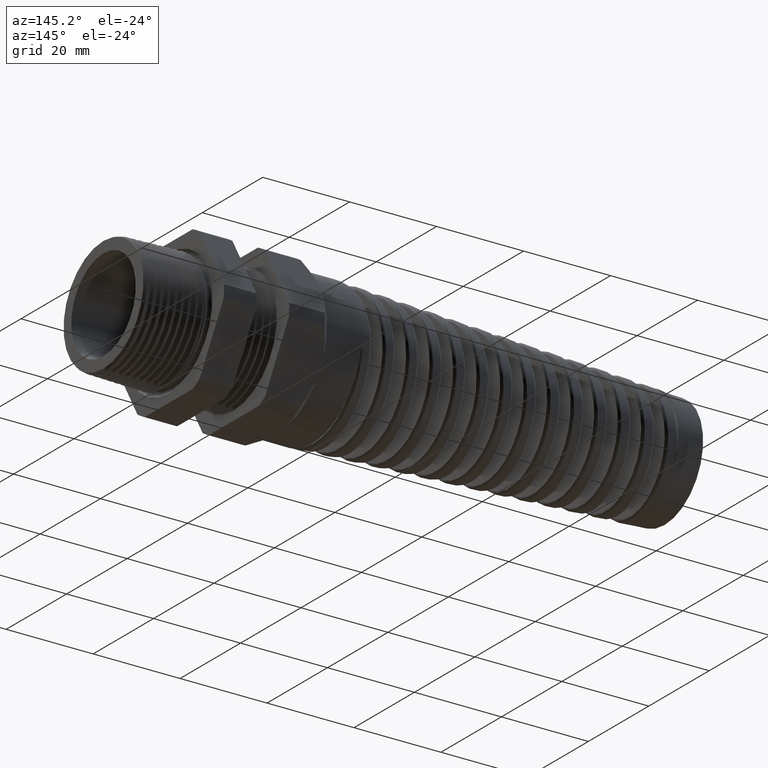
[diagram: clean part render]
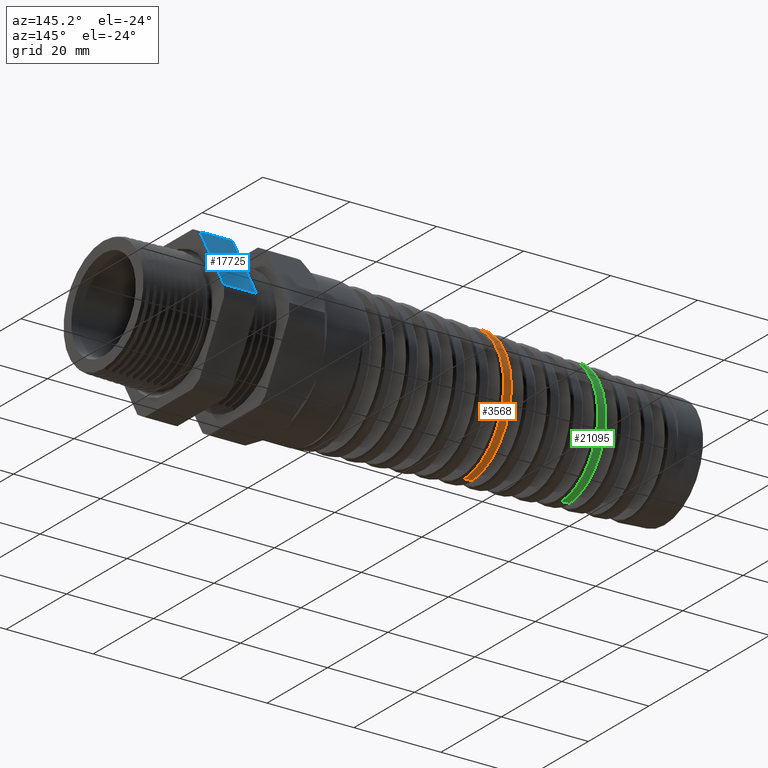
[diagram: same view with three faces highlighted in distinct colors, each labeled with its STEP entity id]
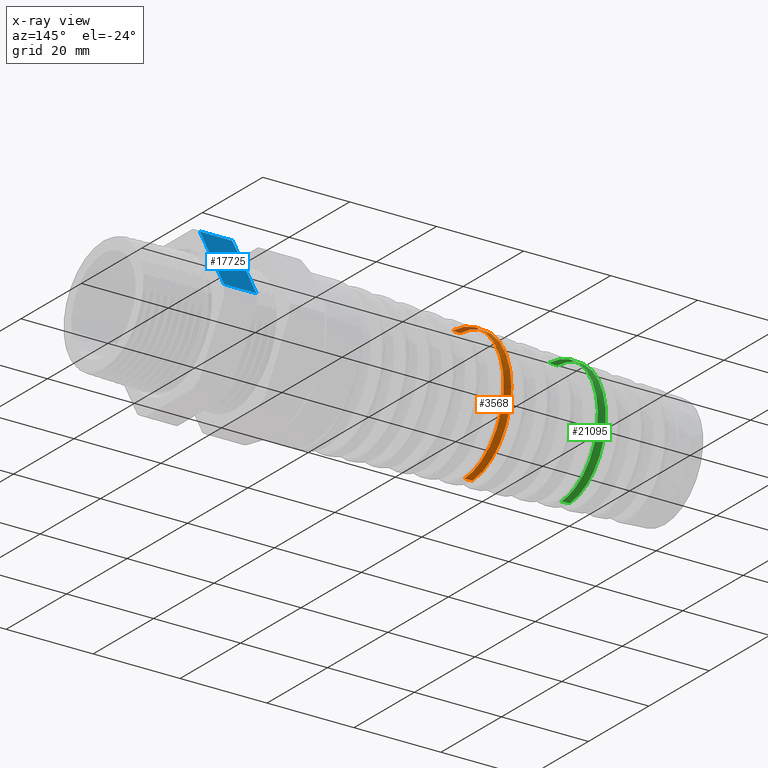
[diagram: x-ray of the same camera — body ghosted, the three highlighted faces saturated]
A machine part, auxiliary view with three faces highlighted in distinct colors.
The next image is the same camera in x-ray (body ghosted, the three faces saturated) — at least one of them is partly hidden behind the body in this view.
Their STEP definitions:

[orange] entity #3568 — the highlighted conical surface has half-angle 2.5 deg.
#615 = CARTESIAN_POINT ( 'NONE',  ( -3.060606324187646900, -2.606973477395661700E-015, -0.5831722846642353200 ) ) ;
#1424 = DIRECTION ( 'NONE',  ( 0.0000000000000000000, 0.0000000000000000000, -1.000000000000000000 ) ) ;
#1425 = DIRECTION ( 'NONE',  ( 1.000000000000000000, 0.0000000000000000000, 0.0000000000000000000 ) ) ;
#1427 = AXIS2_PLACEMENT_3D ( 'NONE', #1432, #1425, #1424 ) ;
#1428 = CONICAL_SURFACE ( 'NONE', #1427, 0.6500000000000000200, 0.04363323129985850100 ) ;
#1432 = CARTESIAN_POINT ( 'NONE',  ( -1.530000000000000000, 0.0000000000000000000, 0.0000000000000000000 ) ) ;
#1434 = FACE_OUTER_BOUND ( 'NONE', #3559, .T. ) ;
#1446 = CARTESIAN_POINT ( 'NONE',  ( -3.006524812227761700, 0.5856049661306287300, -0.01676049459491597800 ) ) ;
#1447 = CARTESIAN_POINT ( 'NONE',  ( -3.007668931847032700, 0.5846997809255973800, -0.03590487241490185300 ) ) ;
#1449 = CARTESIAN_POINT ( 'NONE',  ( -3.009977869589992600, 0.5809689190858302600, -0.07429719530195765000 ) ) ;
#1450 = CARTESIAN_POINT ( 'NONE',  ( -3.011135440082835000, 0.5781457387257786800, -0.09342217588728334000 ) ) ;
#1451 = CARTESIAN_POINT ( 'NONE',  ( -3.014582846091376400, 0.5669900134572331000, -0.1497513812757715900 ) ) ;
#1452 = CARTESIAN_POINT ( 'NONE',  ( -3.016868845466798500, 0.5559671316852700100, -0.1862589748798239300 ) ) ;
#1453 = CARTESIAN_POINT ( 'NONE',  ( -3.020326233298391100, 0.5340227137069996100, -0.2394404201720100900 ) ) ;
#1454 = CARTESIAN_POINT ( 'NONE',  ( -3.021487949721620000, 0.5257515162504836600, -0.2569848751115262900 ) ) ;
#1456 = CARTESIAN_POINT ( 'NONE',  ( -3.023794114102526600, 0.5076156313114592600, -0.2909716162914040600 ) ) ;
#1457 = CARTESIAN_POINT ( 'NONE',  ( -3.026086559556584000, 0.4878886471483313000, -0.3239077413581138400 ) ) ;
#1458 = CARTESIAN_POINT ( 'NONE',  ( -3.028379741246450600, 0.4650208387999917900, -0.3547679535479191800 ) ) ;
#1459 = CARTESIAN_POINT ( 'NONE',  ( -3.030686889901111700, 0.4405574287548397700, -0.3845725828436766800 ) ) ;
#1460 = CARTESIAN_POINT ( 'NONE',  ( -3.031845534000880100, 0.4275403949153066000, -0.3989139884606725000 ) ) ;
#1461 = CARTESIAN_POINT ( 'NONE',  ( -3.035293386819156900, 0.3868669970436665100, -0.4395251329139940900 ) ) ;
#1463 = CARTESIAN_POINT ( 'NONE',  ( -3.037577924824137000, 0.3573724338872424900, -0.4636991341016994900 ) ) ;
#1464 = CARTESIAN_POINT ( 'NONE',  ( -3.041041615840103700, 0.3095629728108257900, -0.4956054867014926800 ) ) ;
#1465 = CARTESIAN_POINT ( 'NONE',  ( -3.042208504390450300, 0.2929322894146247400, -0.5055580639225785200 ) ) ;
#1466 = CARTESIAN_POINT ( 'NONE',  ( -3.044526178347749300, 0.2589417677395514600, -0.5236690426489140100 ) ) ;
#1467 = CARTESIAN_POINT ( 'NONE',  ( -3.045674103889655100, 0.2416180716534440400, -0.5318229647430143800 ) ) ;
#1468 = CARTESIAN_POINT ( 'NONE',  ( -3.049106575610133400, 0.1886887709497737900, -0.5536507800802391600 ) ) ;
#1469 = CARTESIAN_POINT ( 'NONE',  ( -3.051380048614383600, 0.1521342110883908700, -0.5647161471227958300 ) ) ;
#1470 = CARTESIAN_POINT ( 'NONE',  ( -3.054850653878305300, 0.09533964302898269300, -0.5759042780880713200 ) ) ;
#1471 = CARTESIAN_POINT ( 'NONE',  ( -3.056008618702577900, 0.07622559757886356000, -0.5786881212002782400 ) ) ;
#1472 = CARTESIAN_POINT ( 'NONE',  ( -3.058309394199152800, 0.03812748765650364500, -0.5823395777213696800 ) ) ;
#1474 = CARTESIAN_POINT ( 'NONE',  ( -3.059456765066152200, 0.01906850153462931500, -0.5832224754994087500 ) ) ;
#1475 = CARTESIAN_POINT ( 'NONE',  ( -3.060606324187646900, -2.606973477395661700E-015, -0.5831722846642353200 ) ) ;
#1476 = B_SPLINE_CURVE_WITH_KNOTS ( 'NONE', 3,
 ( #1475, #1474, #1472, #1471, #1470, #1469, #1468, #1467, #1466, #1465, #1464, #1463, #1461, #1460, #1459, #1458, #1457, #1456, #1454, #1453, #1452, #1451, #1450, #1449, #1447, #1446, #1531, #1530, #1529, #1528, #1526, #1525, #1524, #1522, #1521, #1520, #1519, #1518, #1517, #1516, #1515, #1514, #1513, #1512, #1511, #1510, #1509, #1508, #1507, #1506 ),
 .UNSPECIFIED., .F., .F.,
 ( 4, 2, 2, 2, 2, 2, 2, 2, 1, 2, 2, 2, 2, 2, 2, 2, 1, 2, 2, 2, 2, 2, 2, 2, 2, 4 ),
 ( 0.6062766747045701400, 0.6077540708148723200, 0.6092314669251746000, 0.6121862591457789500, 0.6136636552560812400, 0.6151410513663834200, 0.6180958435869878800, 0.6195732396972900600, 0.6210506358075923400, 0.6225280319178945200, 0.6240054280281968100, 0.6269602202488011600, 0.6284376163591034500, 0.6299150124694056200, 0.6328698046900100800, 0.6343472008003122600, 0.6358245969106145500, 0.6373019930209167200, 0.6387793891312190100, 0.6417341813518234700, 0.6432115774621256500, 0.6446889735724278300, 0.6476437657930322900, 0.6491211619033345800, 0.6505985580136367500, 0.6535533502342412100 ),
 .UNSPECIFIED. ) ;
#1506 = CARTESIAN_POINT ( 'NONE',  ( -2.950460364723037200, 3.923700451778348800E-016, 0.5879813611120229300 ) ) ;
#1507 = CARTESIAN_POINT ( 'NONE',  ( -2.952762442808790400, 0.03862637536749733600, 0.5878808502121500900 ) ) ;
#1508 = CARTESIAN_POINT ( 'NONE',  ( -2.955020922590568600, 0.07663604128365009100, 0.5840126560297732600 ) ) ;
#1509 = CARTESIAN_POINT ( 'NONE',  ( -2.958425708453556300, 0.1327535016740989900, 0.5727597358901351800 ) ) ;
#1510 = CARTESIAN_POINT ( 'NONE',  ( -2.959563340271945500, 0.1513087424774237100, 0.5680937454982092300 ) ) ;
#1511 = CARTESIAN_POINT ( 'NONE',  ( -2.961856766757359400, 0.1881097567657162000, 0.5568858908146822100 ) ) ;
#1512 = CARTESIAN_POINT ( 'NONE',  ( -2.963014012114438600, 0.2063730332671174800, 0.5503232933618245100 ) ) ;
#1513 = CARTESIAN_POINT ( 'NONE',  ( -2.966453787611651900, 0.2594935139568175800, 0.5282380360353204900 ) ) ;
#1514 = CARTESIAN_POINT ( 'NONE',  ( -2.968730904768443100, 0.2931095981134330700, 0.5102320358808604100 ) ) ;
#1515 = CARTESIAN_POINT ( 'NONE',  ( -2.972171101991705600, 0.3408490920677920100, 0.4783267702025649800 ) ) ;
#1516 = CARTESIAN_POINT ( 'NONE',  ( -2.973325994276017100, 0.3563755407899337800, 0.4668164454061865500 ) ) ;
#1517 = CARTESIAN_POINT ( 'NONE',  ( -2.975628585167820800, 0.3861896260915865800, 0.4423354834423783900 ) ) ;
#1518 = CARTESIAN_POINT ( 'NONE',  ( -2.976769432045162300, 0.4003829749591909500, 0.4294539233805254000 ) ) ;
#1519 = CARTESIAN_POINT ( 'NONE',  ( -2.980181994606460700, 0.4408843081829572600, 0.3889436748344400900 ) ) ;
#1520 = CARTESIAN_POINT ( 'NONE',  ( -2.982443905094217300, 0.4651331604759624800, 0.3594669978460955400 ) ) ;
#1521 = CARTESIAN_POINT ( 'NONE',  ( -2.985895122633497800, 0.4972658408819937100, 0.3114525381954264000 ) ) ;
#1522 = CARTESIAN_POINT ( 'NONE',  ( -2.987053127845036300, 0.5072340734215871100, 0.2948329772594486300 ) ) ;
#1524 = CARTESIAN_POINT ( 'NONE',  ( -2.989348853120509000, 0.5253095624147781100, 0.2610463805303276900 ) ) ;
#1525 = CARTESIAN_POINT ( 'NONE',  ( -2.991636907731217500, 0.5416458682379947700, 0.2265385860288810200 ) ) ;
#1526 = CARTESIAN_POINT ( 'NONE',  ( -2.993927670812806400, 0.5545527552823982200, 0.1906098564007084100 ) ) ;
#1528 = CARTESIAN_POINT ( 'NONE',  ( -2.996226688635757400, 0.5657201489449205100, 0.1539608390211635300 ) ) ;
#1529 = CARTESIAN_POINT ( 'NONE',  ( -2.997385773554176700, 0.5704526074581026700, 0.1351732123241748100 ) ) ;
#1530 = CARTESIAN_POINT ( 'NONE',  ( -3.000840001819675700, 0.5817739196439362100, 0.07850746095156212200 ) ) ;
#1531 = CARTESIAN_POINT ( 'NONE',  ( -3.003104209378270700, 0.5855260722368586000, 0.04052083744025195000 ) ) ;
#1546 = VERTEX_POINT ( 'NONE', #615 ) ;
#3559 = EDGE_LOOP ( 'NONE', ( #3576, #17927, #17909, #17900 ) ) ;
#3568 = ADVANCED_FACE ( 'NONE', ( #1434 ), #1428, .T. ) ;
#3576 = ORIENTED_EDGE ( 'NONE', *, *, #3577, .T. ) ;
#3577 = EDGE_CURVE ( 'NONE', #1546, #17928, #1476, .T. ) ;
#7111 = DIRECTION ( 'NONE',  ( 0.9990482215818576900, 0.0000000000000000000, -0.04361938736533626400 ) ) ;
#7112 = VECTOR ( 'NONE', #7111, 39.37007874015748100 ) ;
#7113 = CARTESIAN_POINT ( 'NONE',  ( -1.530000000000000000, 0.0000000000000000000, -0.6500000000000000200 ) ) ;
#7115 = LINE ( 'NONE', #7113, #7112 ) ;
#7182 = CARTESIAN_POINT ( 'NONE',  ( -2.901880433608546600, 0.3589855609409208800, 0.4699169138616485800 ) ) ;
#7183 = CARTESIAN_POINT ( 'NONE',  ( -2.898479926200768600, 0.3111705116568040900, 0.5019331942602555100 ) ) ;
#7184 = CARTESIAN_POINT ( 'NONE',  ( -2.897343841238257100, 0.2946904397713143700, 0.5118454819387475700 ) ) ;
#7185 = CARTESIAN_POINT ( 'NONE',  ( -2.895054415111732600, 0.2606226013835886100, 0.5301152076843992400 ) ) ;
#7186 = CARTESIAN_POINT ( 'NONE',  ( -2.893898052246294000, 0.2429837868420238200, 0.5384824851672680400 ) ) ;
#7187 = CARTESIAN_POINT ( 'NONE',  ( -2.890462244491084100, 0.1895355778941130200, 0.5606911631996150900 ) ) ;
#7188 = CARTESIAN_POINT ( 'NONE',  ( -2.888190977481860200, 0.1528538765302779600, 0.5718765866757435900 ) ) ;
#7189 = CARTESIAN_POINT ( 'NONE',  ( -2.884770423301426000, 0.09627308888749652700, 0.5832706851436166900 ) ) ;
#7190 = CARTESIAN_POINT ( 'NONE',  ( -2.883624954090612500, 0.07708441324054110500, 0.5861713544705176000 ) ) ;
#7191 = CARTESIAN_POINT ( 'NONE',  ( -2.881333858214901100, 0.03846293405286047700, 0.5900658380928728300 ) ) ;
#7192 = CARTESIAN_POINT ( 'NONE',  ( -2.880198585414450700, 0.01920546605860109700, 0.5910490566470652000 ) ) ;
#7193 = CARTESIAN_POINT ( 'NONE',  ( -2.879066514305781900, 5.355165993026100900E-015, 0.5910984839391095800 ) ) ;
#7194 = B_SPLINE_CURVE_WITH_KNOTS ( 'NONE', 3,
 ( #7193, #7192, #7191, #7190, #7189, #7188, #7187, #7186, #7185, #7184, #7183, #7182, #7261, #7260, #7259, #7258, #7257, #7256, #7255, #7254, #7253, #7252, #7251, #7250, #7249, #7248, #7247, #7246, #7245, #7244, #7243, #7242, #7241, #7240, #7239, #7238, #7237, #7236, #7235, #7234, #7233, #7232, #7231, #7230, #7229, #7228, #7227, #7226, #7225 ),
 .UNSPECIFIED., .F., .F.,
 ( 4, 2, 2, 2, 2, 2, 2, 2, 2, 2, 2, 2, 2, 2, 2, 1, 2, 2, 2, 2, 2, 2, 2, 2, 4 ),
 ( 0.5780492571719269000, 0.5795324008555800000, 0.5810155445392331000, 0.5839818319065392900, 0.5854649755901923900, 0.5869481192738454900, 0.5899144066411516900, 0.5928806940084578900, 0.5943638376921109900, 0.5958469813757640800, 0.5988132687430702800, 0.6002964124267233800, 0.6017795561103765900, 0.6047458434776827900, 0.6062289871613358900, 0.6077121308449889800, 0.6091952745286420800, 0.6106784182122951800, 0.6136447055796013800, 0.6151278492632544800, 0.6166109929469075800, 0.6195772803142137700, 0.6210604239978669800, 0.6225435676815200800, 0.6255098550488262800 ),
 .UNSPECIFIED. ) ;
#7196 = CARTESIAN_POINT ( 'NONE',  ( -2.988911473585390800, 1.480316840622191500E-015, -0.5863025494432146900 ) ) ;
#7197 = CARTESIAN_POINT ( 'NONE',  ( -2.879066514305781900, 5.355165993026100900E-015, 0.5910984839391095800 ) ) ;
#7225 = CARTESIAN_POINT ( 'NONE',  ( -2.988911473585390800, 1.480316840622191500E-015, -0.5863025494432146900 ) ) ;
#7226 = CARTESIAN_POINT ( 'NONE',  ( -2.986591423399582700, 0.03884583535950648900, -0.5864038450219217800 ) ) ;
#7227 = CARTESIAN_POINT ( 'NONE',  ( -2.984301279084263600, 0.07708349776635212100, -0.5826810796310972800 ) ) ;
#7228 = CARTESIAN_POINT ( 'NONE',  ( -2.980860840492398600, 0.1335581929201631000, -0.5715708794380339700 ) ) ;
#7229 = CARTESIAN_POINT ( 'NONE',  ( -2.979714186444238700, 0.1522350934150265300, -0.5669396122312405600 ) ) ;
#7230 = CARTESIAN_POINT ( 'NONE',  ( -2.977411199695505900, 0.1892848199647824400, -0.5557745059774483700 ) ) ;
#7231 = CARTESIAN_POINT ( 'NONE',  ( -2.976253646052804000, 0.2076612072577737300, -0.5492244349265427200 ) ) ;
#7232 = CARTESIAN_POINT ( 'NONE',  ( -2.972819781656889300, 0.2611135558675548600, -0.5271444258702084900 ) ) ;
#7233 = CARTESIAN_POINT ( 'NONE',  ( -2.970555652016705100, 0.2949496037451033200, -0.5090960649538433000 ) ) ;
#7234 = CARTESIAN_POINT ( 'NONE',  ( -2.967119205760266900, 0.3430125141726084200, -0.4770539238186166700 ) ) ;
#7235 = CARTESIAN_POINT ( 'NONE',  ( -2.965961339399271900, 0.3586563218358922400, -0.4654760015059090100 ) ) ;
#7236 = CARTESIAN_POINT ( 'NONE',  ( -2.963649747252064000, 0.3886273466645621700, -0.4408963707359192000 ) ) ;
#7237 = CARTESIAN_POINT ( 'NONE',  ( -2.962500948258554700, 0.4028971852194120900, -0.4279561495242926200 ) ) ;
#7238 = CARTESIAN_POINT ( 'NONE',  ( -2.959061639146469700, 0.4436204920065664500, -0.3872406119627188600 ) ) ;
#7239 = CARTESIAN_POINT ( 'NONE',  ( -2.956780007312540500, 0.4680077541121361300, -0.3575884395348913900 ) ) ;
#7240 = CARTESIAN_POINT ( 'NONE',  ( -2.953326477945575700, 0.5003220846736090600, -0.3092386103824204500 ) ) ;
#7241 = CARTESIAN_POINT ( 'NONE',  ( -2.952174439643408200, 0.5103152364870680000, -0.2925458919749722700 ) ) ;
#7242 = CARTESIAN_POINT ( 'NONE',  ( -2.949892464140237100, 0.5284497164422742300, -0.2585784148765202200 ) ) ;
#7243 = CARTESIAN_POINT ( 'NONE',  ( -2.947621404946478000, 0.5448391180968075200, -0.2238734144285319200 ) ) ;
#7244 = CARTESIAN_POINT ( 'NONE',  ( -2.945345612253579000, 0.5577814544100950800, -0.1877132805393601200 ) ) ;
#7245 = CARTESIAN_POINT ( 'NONE',  ( -2.943055138825844400, 0.5689719594913438300, -0.1508144283515927300 ) ) ;
#7246 = CARTESIAN_POINT ( 'NONE',  ( -2.941896078515407800, 0.5737087682867717500, -0.1318879554810675500 ) ) ;
#7247 = CARTESIAN_POINT ( 'NONE',  ( -2.938440178867781000, 0.5849936315421747600, -0.07495953678211132700 ) ) ;
#7248 = CARTESIAN_POINT ( 'NONE',  ( -2.936160124286850200, 0.5887110539562847600, -0.03677019318425960000 ) ) ;
#7249 = CARTESIAN_POINT ( 'NONE',  ( -2.932730063481760600, 0.5886993514696281500, 0.02085919006484708200 ) ) ;
#7250 = CARTESIAN_POINT ( 'NONE',  ( -2.931586276297476700, 0.5877574701598842200, 0.04012703270099729500 ) ) ;
#7251 = CARTESIAN_POINT ( 'NONE',  ( -2.929284402909489800, 0.5839356162149316200, 0.07878185640971112300 ) ) ;
#7252 = CARTESIAN_POINT ( 'NONE',  ( -2.928139188310546100, 0.5810725361302208100, 0.09794736114767649300 ) ) ;
#7253 = CARTESIAN_POINT ( 'NONE',  ( -2.924726003578979900, 0.5697762750064091500, 0.1545290324018512600 ) ) ;
#7254 = CARTESIAN_POINT ( 'NONE',  ( -2.922468547249052600, 0.5586429097874006100, 0.1912314352354712000 ) ) ;
#7255 = CARTESIAN_POINT ( 'NONE',  ( -2.919033553966453800, 0.5364832125111110800, 0.2447364701602066900 ) ) ;
#7256 = CARTESIAN_POINT ( 'NONE',  ( -2.917875148830946200, 0.5281313327015952900, 0.2623881999276671500 ) ) ;
#7257 = CARTESIAN_POINT ( 'NONE',  ( -2.915578198698458100, 0.5099064493545468800, 0.2964522122486313900 ) ) ;
#7258 = CARTESIAN_POINT ( 'NONE',  ( -2.914435376034315800, 0.5000136464547821900, 0.3129350885426130900 ) ) ;
#7259 = CARTESIAN_POINT ( 'NONE',  ( -2.911011042756497700, 0.4680448399751060400, 0.3607710854283819300 ) ) ;
#7260 = CARTESIAN_POINT ( 'NONE',  ( -2.908735023196287600, 0.4436762593678508800, 0.3905518417989396500 ) ) ;
#7261 = CARTESIAN_POINT ( 'NONE',  ( -2.904136342507771800, 0.3887112215513863200, 0.4455556479089609100 ) ) ;
#7341 = CARTESIAN_POINT ( 'NONE',  ( -2.950460364723037200, 3.923700451778348800E-016, 0.5879813611120229300 ) ) ;
#7342 = DIRECTION ( 'NONE',  ( 0.9990482215818576900, 5.341834311772755600E-018, 0.04361938736533626400 ) ) ;
#7343 = VECTOR ( 'NONE', #7342, 39.37007874015748100 ) ;
#7344 = CARTESIAN_POINT ( 'NONE',  ( -1.530000000000000000, 7.960204194457796700E-017, 0.6500000000000000200 ) ) ;
#7345 = LINE ( 'NONE', #7344, #7343 ) ;
#17900 = ORIENTED_EDGE ( 'NONE', *, *, #17902, .F. ) ;
#17902 = EDGE_CURVE ( 'NONE', #1546, #17910, #7115, .T. ) ;
#17908 = VERTEX_POINT ( 'NONE', #7197 ) ;
#17909 = ORIENTED_EDGE ( 'NONE', *, *, #17911, .T. ) ;
#17910 = VERTEX_POINT ( 'NONE', #7196 ) ;
#17911 = EDGE_CURVE ( 'NONE', #17908, #17910, #7194, .T. ) ;
#17926 = EDGE_CURVE ( 'NONE', #17928, #17908, #7345, .T. ) ;
#17927 = ORIENTED_EDGE ( 'NONE', *, *, #17926, .T. ) ;
#17928 = VERTEX_POINT ( 'NONE', #7341 ) ;

[blue] entity #17725 — the highlighted planar face has unit normal (0, 0.866, 0.5).
#6383 = CARTESIAN_POINT ( 'NONE',  ( -0.6052755905511810800, 0.7194909755756817600, 0.05380507471562175100 ) ) ;
#6384 = CARTESIAN_POINT ( 'NONE',  ( -0.6052755905511810800, 0.4063420493440889100, 0.5961949252843789000 ) ) ;
#6385 = DIRECTION ( 'NONE',  ( 0.0000000000000000000, 0.5000000000000000000, -0.8660254037844386000 ) ) ;
#6386 = VECTOR ( 'NONE', #6385, 39.37007874015748900 ) ;
#6387 = CARTESIAN_POINT ( 'NONE',  ( -0.6052755905511810800, 0.8879165124598854500, -0.2379165124598848800 ) ) ;
#6388 = LINE ( 'NONE', #6387, #6386 ) ;
#6603 = DIRECTION ( 'NONE',  ( -1.000000000000000000, 0.0000000000000000000, 0.0000000000000000000 ) ) ;
#6604 = VECTOR ( 'NONE', #6603, 39.37007874015748100 ) ;
#6605 = CARTESIAN_POINT ( 'NONE',  ( 0.2800000000000000300, 0.4063420493440889100, 0.5961949252843789000 ) ) ;
#6606 = LINE ( 'NONE', #6605, #6604 ) ;
#6609 = DIRECTION ( 'NONE',  ( 0.0000000000000000000, -0.5000000000000000000, 0.8660254037844386000 ) ) ;
#6610 = DIRECTION ( 'NONE',  ( 0.0000000000000000000, 0.8660254037844387100, 0.5000000000000001100 ) ) ;
#6611 = CARTESIAN_POINT ( 'NONE',  ( 0.2800000000000000300, 0.4063420493440888500, 0.5961949252843789000 ) ) ;
#6612 = AXIS2_PLACEMENT_3D ( 'NONE', #6611, #6610, #6609 ) ;
#6613 = PLANE ( 'NONE',  #6612 ) ;
#6614 = FACE_OUTER_BOUND ( 'NONE', #17748, .T. ) ;
#6653 = DIRECTION ( 'NONE',  ( -1.000000000000000000, 0.0000000000000000000, 0.0000000000000000000 ) ) ;
#6654 = VECTOR ( 'NONE', #6653, 39.37007874015748100 ) ;
#6656 = CARTESIAN_POINT ( 'NONE',  ( 0.2800000000000000300, 0.7194909755756817600, 0.05380507471562175100 ) ) ;
#6657 = LINE ( 'NONE', #6656, #6654 ) ;
#7116 = DIRECTION ( 'NONE',  ( 0.0000000000000000000, -0.5000000000000000000, 0.8660254037844386000 ) ) ;
#7117 = VECTOR ( 'NONE', #7116, 39.37007874015748900 ) ;
#7118 = CARTESIAN_POINT ( 'NONE',  ( -0.3100000000000000000, 0.8879165124598854500, -0.2379165124598850200 ) ) ;
#7124 = LINE ( 'NONE', #7118, #7117 ) ;
#7575 = CARTESIAN_POINT ( 'NONE',  ( -0.3100000000000000000, 0.7194909755756817600, 0.05380507471562175100 ) ) ;
#8542 = CARTESIAN_POINT ( 'NONE',  ( -0.3100000000000000000, 0.4063420493440889100, 0.5961949252843789000 ) ) ;
#17629 = EDGE_CURVE ( 'NONE', #17630, #17631, #6388, .T. ) ;
#17630 = VERTEX_POINT ( 'NONE', #6384 ) ;
#17631 = VERTEX_POINT ( 'NONE', #6383 ) ;
#17725 = ADVANCED_FACE ( 'NONE', ( #6614 ), #6613, .T. ) ;
#17726 = ORIENTED_EDGE ( 'NONE', *, *, #17746, .T. ) ;
#17727 = ORIENTED_EDGE ( 'NONE', *, *, #17629, .F. ) ;
#17728 = ORIENTED_EDGE ( 'NONE', *, *, #17729, .F. ) ;
#17729 = EDGE_CURVE ( 'NONE', #20783, #17630, #6606, .T. ) ;
#17730 = ORIENTED_EDGE ( 'NONE', *, *, #17901, .F. ) ;
#17746 = EDGE_CURVE ( 'NONE', #17988, #17631, #6657, .T. ) ;
#17748 = EDGE_LOOP ( 'NONE', ( #17726, #17727, #17728, #17730 ) ) ;
#17901 = EDGE_CURVE ( 'NONE', #17988, #20783, #7124, .T. ) ;
#17988 = VERTEX_POINT ( 'NONE', #7575 ) ;
#20783 = VERTEX_POINT ( 'NONE', #8542 ) ;

[green] entity #21095 — the highlighted conical surface has half-angle 2.5 deg.
#8788 = CARTESIAN_POINT ( 'NONE',  ( -3.830819268329497700, 0.4778470694344110200, -0.2738062236531227400 ) ) ;
#8789 = CARTESIAN_POINT ( 'NONE',  ( -3.828554818668521900, 0.4947327158660368400, -0.2421510634899423600 ) ) ;
#8790 = CARTESIAN_POINT ( 'NONE',  ( -3.825139039061587800, 0.5153512366793874300, -0.1923719836094240400 ) ) ;
#8791 = CARTESIAN_POINT ( 'NONE',  ( -3.823997337295686800, 0.5214335074351818000, -0.1753935071539610400 ) ) ;
#8792 = CARTESIAN_POINT ( 'NONE',  ( -3.821694078295478900, 0.5319647050753807400, -0.1406411554463575200 ) ) ;
#8793 = CARTESIAN_POINT ( 'NONE',  ( -3.820545078951165700, 0.5363509585411262400, -0.1230566529849850000 ) ) ;
#8794 = CARTESIAN_POINT ( 'NONE',  ( -3.817116525254838700, 0.5468372390995279700, -0.07013672847458585200 ) ) ;
#8795 = CARTESIAN_POINT ( 'NONE',  ( -3.814842201579737000, 0.5503470784402925100, -0.03445003481797939000 ) ) ;
#8796 = CARTESIAN_POINT ( 'NONE',  ( -3.811390694955962400, 0.5503359208698395100, 0.01969279102635345200 ) ) ;
#8797 = CARTESIAN_POINT ( 'NONE',  ( -3.810228289188312400, 0.5494317523167855400, 0.03792816116874567200 ) ) ;
#8798 = CARTESIAN_POINT ( 'NONE',  ( -3.807930509066493700, 0.5458634146437048000, 0.07387410206703712300 ) ) ;
#8799 = CARTESIAN_POINT ( 'NONE',  ( -3.806791603018837100, 0.5432075007812672300, 0.09165126221668192000 ) ) ;
#8800 = CARTESIAN_POINT ( 'NONE',  ( -3.803383039719721900, 0.5326814989278274600, 0.1444067286971900400 ) ) ;
#8801 = CARTESIAN_POINT ( 'NONE',  ( -3.801120028867097200, 0.5222664559656837700, 0.1788429058997014500 ) ) ;
#8802 = CARTESIAN_POINT ( 'NONE',  ( -3.796516451358056300, 0.4944195520834374600, 0.2460036932690729000 ) ) ;
#8803 = CARTESIAN_POINT ( 'NONE',  ( -3.794247635684746100, 0.4774334110282696400, 0.2776688859053944000 ) ) ;
#8804 = CARTESIAN_POINT ( 'NONE',  ( -3.790826792739423500, 0.4475459599717989100, 0.3224051563037672600 ) ) ;
#8805 = CARTESIAN_POINT ( 'NONE',  ( -3.789683859325662800, 0.4368433440260435800, 0.3368536174821176700 ) ) ;
#8806 = CARTESIAN_POINT ( 'NONE',  ( -3.787384164036459400, 0.4139240158114141900, 0.3648014565524637100 ) ) ;
#8807 = CARTESIAN_POINT ( 'NONE',  ( -3.786224463697009500, 0.4016671152432800300, 0.3783270310357706400 ) ) ;
#8808 = CARTESIAN_POINT ( 'NONE',  ( -3.782790197678806500, 0.3634023497051666100, 0.4165909906776545400 ) ) ;
#8809 = CARTESIAN_POINT ( 'NONE',  ( -3.780536996843473700, 0.3356896918213876400, 0.4393440451089377100 ) ) ;
#8810 = CARTESIAN_POINT ( 'NONE',  ( -3.777128826529121900, 0.2908498111237256500, 0.4693725625398266200 ) ) ;
#8811 = CARTESIAN_POINT ( 'NONE',  ( -3.775984129262467200, 0.2752972969559000500, 0.4787237654437693200 ) ) ;
#8812 = CARTESIAN_POINT ( 'NONE',  ( -3.773690223707494100, 0.2433072214334167900, 0.4958600700488060000 ) ) ;
#8813 = CARTESIAN_POINT ( 'NONE',  ( -3.772551062816809100, 0.2270140129869572000, 0.5035755437784075200 ) ) ;
#8814 = CARTESIAN_POINT ( 'NONE',  ( -3.769138956495253100, 0.1772688510548615100, 0.5242434578256277600 ) ) ;
#8815 = CARTESIAN_POINT ( 'NONE',  ( -3.766870694750398900, 0.1429595101890759300, 0.5347406025837475600 ) ) ;
#8816 = CARTESIAN_POINT ( 'NONE',  ( -3.763423354598605600, 0.08974045629593847800, 0.5454498733702332100 ) ) ;
#8817 = CARTESIAN_POINT ( 'NONE',  ( -3.762267411299369700, 0.07171137308903646800, 0.5481600296021181800 ) ) ;
#8818 = CARTESIAN_POINT ( 'NONE',  ( -3.759985502561653500, 0.03585373435185984500, 0.5517667601466811300 ) ) ;
#8819 = CARTESIAN_POINT ( 'NONE',  ( -3.758853131424170400, 0.01792607055191897100, 0.5526861706774082200 ) ) ;
#8820 = CARTESIAN_POINT ( 'NONE',  ( -3.757722024854562600, 6.784893704265088100E-013, 0.5527355558567894600 ) ) ;
#8821 = B_SPLINE_CURVE_WITH_KNOTS ( 'NONE', 3,
 ( #8820, #8819, #8818, #8817, #8816, #8815, #8814, #8813, #8812, #8811, #8810, #8809, #8808, #8807, #8806, #8805, #8804, #8803, #8802, #8801, #8800, #8799, #8798, #8797, #8796, #8795, #8794, #8793, #8792, #8791, #8790, #8789, #8788, #8858, #8857, #8856, #8855, #8854, #8853, #8852, #8851, #8850, #8849, #8848, #8847, #8846, #8845, #8844, #8843 ),
 .UNSPECIFIED., .F., .F.,
 ( 4, 2, 2, 2, 2, 2, 2, 2, 2, 2, 2, 2, 2, 2, 2, 2, 2, 2, 1, 2, 2, 2, 2, 2, 4 ),
 ( 0.9468653443812947700, 0.9482514743349597100, 0.9496376042886247600, 0.9524098641959547500, 0.9537959941496196900, 0.9551821241032846200, 0.9579543840106146100, 0.9593405139642796600, 0.9607266439179446000, 0.9634989038252745900, 0.9662711637326044700, 0.9676572936862695200, 0.9690434236399344500, 0.9718156835472644400, 0.9732018135009293800, 0.9745879434545944300, 0.9773602033619244200, 0.9787463333155893600, 0.9801324632692542900, 0.9815185932229193400, 0.9829047231765842800, 0.9856769830839142700, 0.9870631130375793200, 0.9884492429912442600, 0.9912215028985742500 ),
 .UNSPECIFIED. ) ;
#8822 = LINE ( 'NONE', #8842, #8841 ) ;
#8823 = CARTESIAN_POINT ( 'NONE',  ( -3.757722024854562600, 6.784893704265088100E-013, 0.5527355558567894600 ) ) ;
#8825 = CARTESIAN_POINT ( 'NONE',  ( -3.831799877856780800, 1.404384459931703700E-015, 0.5495012469460745000 ) ) ;
#8840 = DIRECTION ( 'NONE',  ( 0.9990482215818576900, 5.341834311772755600E-018, 0.04361938736533626400 ) ) ;
#8841 = VECTOR ( 'NONE', #8840, 39.37007874015748100 ) ;
#8842 = CARTESIAN_POINT ( 'NONE',  ( -1.530000000000000000, 7.960204194457796700E-017, 0.6500000000000000200 ) ) ;
#8843 = CARTESIAN_POINT ( 'NONE',  ( -3.867576329887805200, -8.414187169814316400E-013, -0.5479392133164787700 ) ) ;
#8844 = CARTESIAN_POINT ( 'NONE',  ( -3.865277482137525300, 0.03605652165298643000, -0.5480395831769145900 ) ) ;
#8845 = CARTESIAN_POINT ( 'NONE',  ( -3.862996436420418300, 0.07174760006430008800, -0.5446143007397562500 ) ) ;
#8846 = CARTESIAN_POINT ( 'NONE',  ( -3.859541251161318500, 0.1247351164847949600, -0.5342163279437870400 ) ) ;
#8847 = CARTESIAN_POINT ( 'NONE',  ( -3.858378588721010700, 0.1423886346111814800, -0.5298411350956036000 ) ) ;
#8848 = CARTESIAN_POINT ( 'NONE',  ( -3.856061961456676900, 0.1770965095760522200, -0.5193783912831737600 ) ) ;
#8849 = CARTESIAN_POINT ( 'NONE',  ( -3.854914771436460000, 0.1940639145414973500, -0.5133272517907598900 ) ) ;
#8850 = CARTESIAN_POINT ( 'NONE',  ( -3.851487842297500700, 0.2438392985862880000, -0.4927866850806351100 ) ) ;
#8851 = CARTESIAN_POINT ( 'NONE',  ( -3.849221384133992600, 0.2755311576529429500, -0.4759329828470229600 ) ) ;
#8852 = CARTESIAN_POINT ( 'NONE',  ( -3.845767409319312600, 0.3207635660972797400, -0.4457811775700165600 ) ) ;
#8853 = CARTESIAN_POINT ( 'NONE',  ( -3.844611831892620600, 0.3353840572855090200, -0.4349469006608648300 ) ) ;
#8854 = CARTESIAN_POINT ( 'NONE',  ( -3.842319894038926700, 0.3632249935130230100, -0.4121149713249586100 ) ) ;
#8855 = CARTESIAN_POINT ( 'NONE',  ( -3.840035596127117800, 0.3898196030745536600, -0.3880203406345716900 ) ) ;
#8856 = CARTESIAN_POINT ( 'NONE',  ( -3.837745257884854300, 0.4139527134621784900, -0.3614337970155257500 ) ) ;
#8857 = CARTESIAN_POINT ( 'NONE',  ( -3.835443028615324000, 0.4368350291004347000, -0.3335818083490961800 ) ) ;
#8858 = CARTESIAN_POINT ( 'NONE',  ( -3.834279453219011600, 0.4477048672564698500, -0.3189361282917969600 ) ) ;
#9135 = FACE_OUTER_BOUND ( 'NONE', #21096, .T. ) ;
#9138 = CARTESIAN_POINT ( 'NONE',  ( -3.867576329887805200, -8.414187169814316400E-013, -0.5479392133164787700 ) ) ;
#9139 = CARTESIAN_POINT ( 'NONE',  ( -3.941961544861567900, -4.890486840418010800E-013, -0.5446914846922719100 ) ) ;
#9160 = VECTOR ( 'NONE', #9246, 39.37007874015748100 ) ;
#9161 = CARTESIAN_POINT ( 'NONE',  ( -1.530000000000000000, 0.0000000000000000000, -0.6500000000000000200 ) ) ;
#9162 = LINE ( 'NONE', #9161, #9160 ) ;
#9163 = DIRECTION ( 'NONE',  ( 0.0000000000000000000, 0.0000000000000000000, -1.000000000000000000 ) ) ;
#9164 = DIRECTION ( 'NONE',  ( 1.000000000000000000, 0.0000000000000000000, 0.0000000000000000000 ) ) ;
#9166 = CARTESIAN_POINT ( 'NONE',  ( -1.530000000000000000, 0.0000000000000000000, 0.0000000000000000000 ) ) ;
#9167 = AXIS2_PLACEMENT_3D ( 'NONE', #9166, #9164, #9163 ) ;
#9168 = CONICAL_SURFACE ( 'NONE', #9167, 0.6500000000000000200, 0.04363323129985850100 ) ;
#9205 = CARTESIAN_POINT ( 'NONE',  ( -3.854686028762661200, 0.3337104220072270000, 0.4367727293737871400 ) ) ;
#9206 = CARTESIAN_POINT ( 'NONE',  ( -3.856945394470667300, 0.3612609686996535200, 0.4141540815267955000 ) ) ;
#9207 = CARTESIAN_POINT ( 'NONE',  ( -3.860376834151871200, 0.3993097495453661900, 0.3761055539860709300 ) ) ;
#9208 = CARTESIAN_POINT ( 'NONE',  ( -3.861533559563322400, 0.4114964157287163700, 0.3626567258000688600 ) ) ;
#9209 = CARTESIAN_POINT ( 'NONE',  ( -3.863828941367180000, 0.4342756653835336800, 0.3348790486338122900 ) ) ;
#9210 = CARTESIAN_POINT ( 'NONE',  ( -3.864971089281478800, 0.4449138131952511400, 0.3205176196976730100 ) ) ;
#9211 = CARTESIAN_POINT ( 'NONE',  ( -3.868397802842042000, 0.4746229389283414500, 0.2760477059757649500 ) ) ;
#9212 = CARTESIAN_POINT ( 'NONE',  ( -3.870683271197322500, 0.4915101114156071900, 0.2445671590194632400 ) ) ;
#9213 = CARTESIAN_POINT ( 'NONE',  ( -3.875325467866823600, 0.5191967326228871200, 0.1777864399122116300 ) ) ;
#9214 = CARTESIAN_POINT ( 'NONE',  ( -3.877600901359023600, 0.5295439416082891000, 0.1435696221844380300 ) ) ;
#9215 = CARTESIAN_POINT ( 'NONE',  ( -3.881016930919484400, 0.5400080834528219200, 0.09112450863241117200 ) ) ;
#9216 = CARTESIAN_POINT ( 'NONE',  ( -3.882156619135779700, 0.5426486372459764500, 0.07345110038086447000 ) ) ;
#9217 = CARTESIAN_POINT ( 'NONE',  ( -3.884451494672149800, 0.5461965424255359500, 0.03771311702707830200 ) ) ;
#9218 = CARTESIAN_POINT ( 'NONE',  ( -3.885610797046777700, 0.5470954488339386800, 0.01958425701399516000 ) ) ;
#9219 = CARTESIAN_POINT ( 'NONE',  ( -3.889057257437332500, 0.5471066554398973400, -0.03423803044941790100 ) ) ;
#9220 = CARTESIAN_POINT ( 'NONE',  ( -3.891336005029608200, 0.5436174377124781700, -0.06971355776270371500 ) ) ;
#9221 = CARTESIAN_POINT ( 'NONE',  ( -3.894786778604715200, 0.5331924581574812900, -0.1223201655062582500 ) ) ;
#9222 = CARTESIAN_POINT ( 'NONE',  ( -3.895945332364397600, 0.5288320636168134500, -0.1397998583280542200 ) ) ;
#9223 = CARTESIAN_POINT ( 'NONE',  ( -3.898267405270506600, 0.5183618617230000300, -0.1743487574333044100 ) ) ;
#9224 = CARTESIAN_POINT ( 'NONE',  ( -3.899417349959258100, 0.5123149889464006000, -0.1912274633415402800 ) ) ;
#9225 = CARTESIAN_POINT ( 'NONE',  ( -3.902850522822894700, 0.4918172209274714900, -0.2407133423282042900 ) ) ;
#9226 = CARTESIAN_POINT ( 'NONE',  ( -3.905119312379532000, 0.4750312913872800600, -0.2721809204295009800 ) ) ;
#9227 = CARTESIAN_POINT ( 'NONE',  ( -3.908573609601012400, 0.4450692464557072800, -0.3170421262712466700 ) ) ;
#9228 = CARTESIAN_POINT ( 'NONE',  ( -3.909734351809077200, 0.4342617251987749800, -0.3316043951679400500 ) ) ;
#9229 = CARTESIAN_POINT ( 'NONE',  ( -3.912034258794562000, 0.4115115665761062700, -0.3592955431708205200 ) ) ;
#9230 = CARTESIAN_POINT ( 'NONE',  ( -3.914325565310955700, 0.3875190623246399000, -0.3857264403522248100 ) ) ;
#9231 = CARTESIAN_POINT ( 'NONE',  ( -3.916621533354076100, 0.3610827837314721800, -0.4096763549490151600 ) ) ;
#9232 = CARTESIAN_POINT ( 'NONE',  ( -3.918928937962733900, 0.3334096106911876900, -0.4323697064205212500 ) ) ;
#9233 = CARTESIAN_POINT ( 'NONE',  ( -3.920094005681941300, 0.3188809874826580800, -0.4431358479746289000 ) ) ;
#9234 = CARTESIAN_POINT ( 'NONE',  ( -3.923576458896692800, 0.2739036392010729700, -0.4731165637395565700 ) ) ;
#9235 = CARTESIAN_POINT ( 'NONE',  ( -3.925853994855186700, 0.2423955503564315900, -0.4898704856913673700 ) ) ;
#9236 = CARTESIAN_POINT ( 'NONE',  ( -3.929285617600822600, 0.1929181728825200300, -0.5102870993246159100 ) ) ;
#9237 = CARTESIAN_POINT ( 'NONE',  ( -3.930432060346402200, 0.1760538373211453000, -0.5163012461381513200 ) ) ;
#9238 = CARTESIAN_POINT ( 'NONE',  ( -3.932743785502755600, 0.1415602677121060300, -0.5266997017893045900 ) ) ;
#9239 = CARTESIAN_POINT ( 'NONE',  ( -3.933904362741528900, 0.1239996319429530300, -0.5310523222904655100 ) ) ;
#9240 = CARTESIAN_POINT ( 'NONE',  ( -3.937357788269940400, 0.07131224559171491000, -0.5413904685656976100 ) ) ;
#9241 = CARTESIAN_POINT ( 'NONE',  ( -3.939646662743993700, 0.03583277771978978600, -0.5447925546282794700 ) ) ;
#9242 = CARTESIAN_POINT ( 'NONE',  ( -3.941961544861567900, -4.890486840418010800E-013, -0.5446914846922719100 ) ) ;
#9244 = B_SPLINE_CURVE_WITH_KNOTS ( 'NONE', 3,
 ( #9242, #9241, #9240, #9239, #9238, #9237, #9236, #9235, #9234, #9233, #9232, #9231, #9230, #9229, #9228, #9227, #9226, #9225, #9224, #9223, #9222, #9221, #9220, #9219, #9218, #9217, #9216, #9215, #9214, #9213, #9212, #9211, #9210, #9209, #9208, #9207, #9206, #9205, #9282, #9281, #9280, #9279, #9278, #9277, #9276, #9275, #9274, #9273, #9272 ),
 .UNSPECIFIED., .F., .F.,
 ( 4, 2, 2, 2, 2, 2, 1, 2, 2, 2, 2, 2, 2, 2, 2, 2, 2, 2, 2, 2, 2, 2, 2, 2, 4 ),
 ( 0.2420208641680552900, 0.2447813659032362400, 0.2461616167708267400, 0.2475418676384172100, 0.2503023693735981800, 0.2516826202411886500, 0.2530628711087791200, 0.2544431219763695900, 0.2558233728439600600, 0.2585838745791410000, 0.2599641254467314800, 0.2613443763143219500, 0.2641048780495028900, 0.2654851289170934200, 0.2668653797846838900, 0.2696258815198648300, 0.2723863832550457700, 0.2737666341226362400, 0.2751468849902267100, 0.2779073867254077100, 0.2792876375929981300, 0.2806678884605886500, 0.2834283901957696000, 0.2848086410633600700, 0.2861888919309505400 ),
 .UNSPECIFIED. ) ;
#9246 = DIRECTION ( 'NONE',  ( 0.9990482215818576900, 0.0000000000000000000, -0.04361938736533626400 ) ) ;
#9272 = CARTESIAN_POINT ( 'NONE',  ( -3.831799877856780800, 1.404384459931703700E-015, 0.5495012469460745000 ) ) ;
#9273 = CARTESIAN_POINT ( 'NONE',  ( -3.832934067728242000, 0.01782061932575080100, 0.5494517271468492000 ) ) ;
#9274 = CARTESIAN_POINT ( 'NONE',  ( -3.834068090566156200, 0.03564606185469625800, 0.5485373949186559400 ) ) ;
#9275 = CARTESIAN_POINT ( 'NONE',  ( -3.836349095012884900, 0.07130590692504168400, 0.5449495041636935900 ) ) ;
#9276 = CARTESIAN_POINT ( 'NONE',  ( -3.837502511814007800, 0.08923870876354102200, 0.5422525475999654400 ) ) ;
#9277 = CARTESIAN_POINT ( 'NONE',  ( -3.840942072494294600, 0.1421218965620018000, 0.5316086543852144300 ) ) ;
#9278 = CARTESIAN_POINT ( 'NONE',  ( -3.843211891169688900, 0.1762250267240308700, 0.5211754751247074100 ) ) ;
#9279 = CARTESIAN_POINT ( 'NONE',  ( -3.846644174928587100, 0.2256833827039899400, 0.5006250932286510100 ) ) ;
#9280 = CARTESIAN_POINT ( 'NONE',  ( -3.847792611714205200, 0.2418848093196463200, 0.4929524537171395300 ) ) ;
#9281 = CARTESIAN_POINT ( 'NONE',  ( -3.850106209308840700, 0.2736989925447179100, 0.4759079542104512300 ) ) ;
#9282 = CARTESIAN_POINT ( 'NONE',  ( -3.851259156975601200, 0.2891450852108822200, 0.4666191040103666600 ) ) ;
#21041 = VERTEX_POINT ( 'NONE', #8825 ) ;
#21043 = ORIENTED_EDGE ( 'NONE', *, *, #21055, .T. ) ;
#21048 = VERTEX_POINT ( 'NONE', #8823 ) ;
#21052 = ORIENTED_EDGE ( 'NONE', *, *, #21060, .T. ) ;
#21055 = EDGE_CURVE ( 'NONE', #21048, #21090, #8821, .T. ) ;
#21060 = EDGE_CURVE ( 'NONE', #21041, #21048, #8822, .T. ) ;
#21087 = VERTEX_POINT ( 'NONE', #9139 ) ;
#21090 = VERTEX_POINT ( 'NONE', #9138 ) ;
#21091 = ORIENTED_EDGE ( 'NONE', *, *, #21098, .F. ) ;
#21094 = ORIENTED_EDGE ( 'NONE', *, *, #21099, .T. ) ;
#21095 = ADVANCED_FACE ( 'NONE', ( #9135 ), #9168, .T. ) ;
#21096 = EDGE_LOOP ( 'NONE', ( #21094, #21052, #21043, #21091 ) ) ;
#21098 = EDGE_CURVE ( 'NONE', #21087, #21090, #9162, .T. ) ;
#21099 = EDGE_CURVE ( 'NONE', #21087, #21041, #9244, .T. ) ;